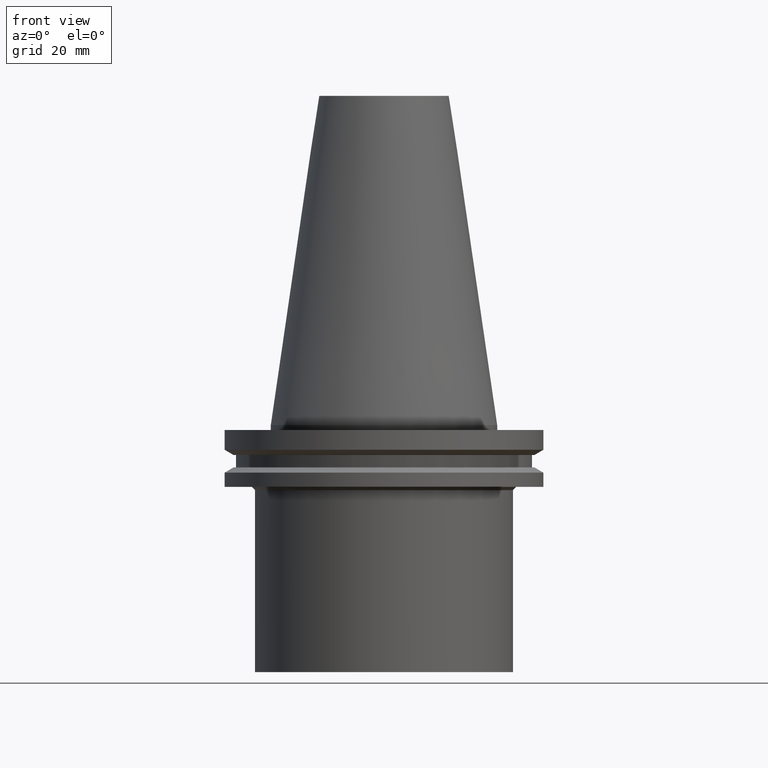
[diagram: clean part render]
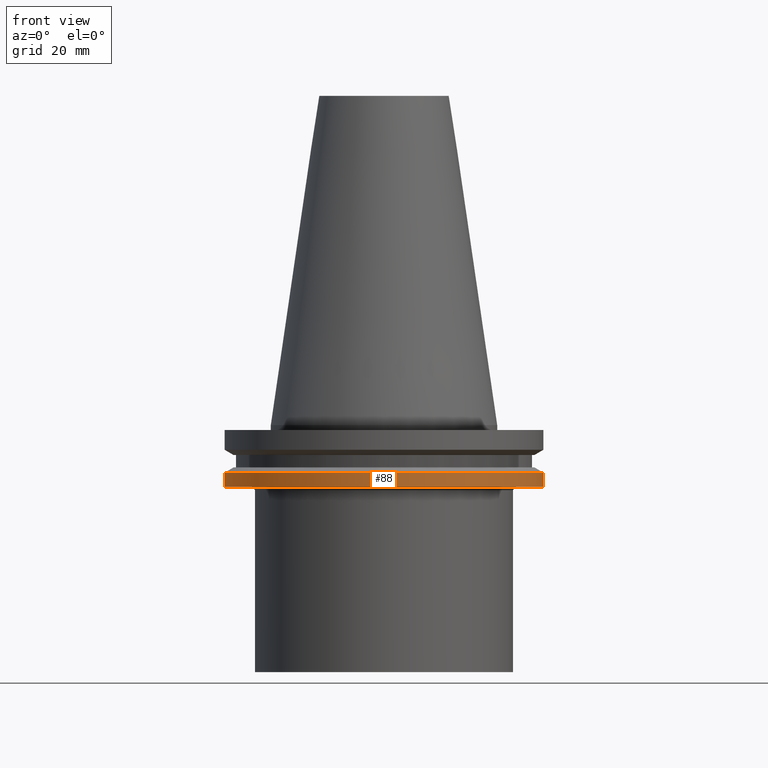
[diagram: same view with one face highlighted and labeled with its STEP entity id]
A machine part, front view. The second image highlights one B-rep face of the part: STEP entity #88.
In plain terms, the highlighted cylindrical surface (bore or boss wall) has radius 49.2125 mm, axis along (0, 0, -1).
Its self-contained STEP definition (entity closure, byte-faithful):
#54=EDGE_CURVE('Unnamed[1]',#146,#146,#147,.T.);
#88=ADVANCED_FACE('Unnamed[1]',(#197,#198),#199,.T.);
#102=EDGE_CURVE('Unnamed[1]',#220,#220,#221,.T.);
#146=VERTEX_POINT('',#271);
#147=CIRCLE('',#272,49.2124999999999);
#197=FACE_BOUND('',#334,.T.);
#198=FACE_BOUND('',#335,.T.);
#199=CYLINDRICAL_SURFACE('',#336,49.2124999999999);
#220=VERTEX_POINT('',#363);
#221=CIRCLE('',#364,49.2124999999999);
#271=CARTESIAN_POINT('',(1.16647607618786E-015,49.2124999999999,-19.0500000000001));
#272=AXIS2_PLACEMENT_3D('',#417,#418,#419);
#334=EDGE_LOOP('',(#472));
#335=EDGE_LOOP('',(#473));
#336=AXIS2_PLACEMENT_3D('',#474,#475,#476);
#363=CARTESIAN_POINT('',(8.96747618675648E-016,49.2124999999999,-14.645));
#364=AXIS2_PLACEMENT_3D('',#498,#499,#500);
#417=CARTESIAN_POINT('',(1.16647607618786E-015,2.22257086175561E-014,-19.0500000000001));
#418=DIRECTION('',(6.12323399573677E-017,7.39044660191259E-016,-1.0));
#419=DIRECTION('',(-5.00805866072784E-032,1.0,7.39044660191259E-016));
#472=ORIENTED_EDGE('',*,*,#54,.F.);
#473=ORIENTED_EDGE('',*,*,#102,.T.);
#474=CARTESIAN_POINT('',(1.03161184743175E-015,2.05979627534847E-014,-16.8475000000001));
#475=DIRECTION('',(6.12323399573677E-017,7.39044660191259E-016,-1.0));
#476=DIRECTION('',(-5.00805866072784E-032,1.0,7.39044660191259E-016));
#498=CARTESIAN_POINT('',(8.9674761867565E-016,1.89702168894134E-014,-14.645));
#499=DIRECTION('',(6.12323399573677E-017,7.39044660191258E-016,-1.0));
#500=DIRECTION('',(-5.00805866072748E-032,1.0,7.39044660191259E-016));